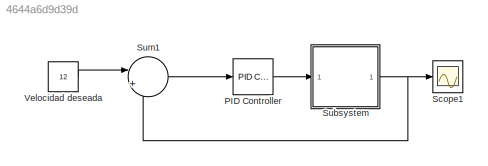
MODEL slx_4644a6d9d39d
KIND model
CONFIG AbsTol = auto
CONFIG EnableMultiTasking = off
CONFIG FixedStep = auto
CONFIG MaxStep = auto
CONFIG MinStep = auto
CONFIG PreLoadFcn = load("properties.mat");
CONFIG RelTol = 1e-3
CONFIG SampleTimeConstraint = Unconstrained
CONFIG SolverName = VariableStepAuto
CONFIG StartTime = 0.0
CONFIG StopTime = 10.0
BLOCK [Reference] PID Controller  REF=slpidlib/PID Controller
  LibrarySourceBlock = simulink/Continuous/PID Controller
  SourceBlock = slpidlib/PID Controller
  SourceType = PID 1dof
BLOCK [Scope] Scope1
  Floating = off
  NumInputPorts = 1
  ScopeSpecificationString = Simulink.scopes.TimeScopeBlockCfg('CurrentConfiguration', extmgr.ConfigurationSet(extmgr.Configuration('Core','General UI',true,'FigureColor',[0.129411764705882 0.129411764705882 0.129411764705882]),extmgr.Configuration('Core','Source UI',true),extmgr.Configuration('Sources','WiredSimulink',true,'DataLoggingVariableName','ScopeData1'),extmgr.Configuration('Visuals','Time Domain',true,'SerializedDi...<+1806ch>
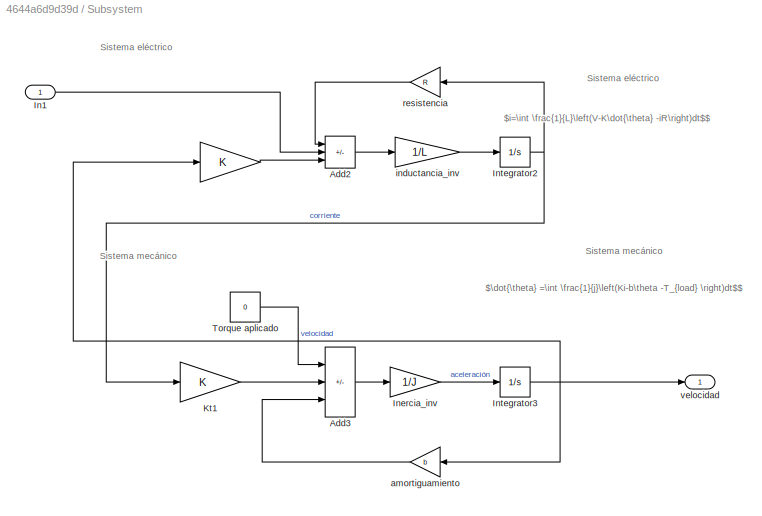
BLOCK [SubSystem] Subsystem
BLOCK [Gain] Subsystem/ 
  Gain = K
BLOCK [Sum] Subsystem/Add2
  IconShape = rectangular
  Inputs = -+-
BLOCK [Sum] Subsystem/Add3
  IconShape = rectangular
  Inputs = ++-
BLOCK [Inport] Subsystem/In1
BLOCK [Gain] Subsystem/Inercia_inv
  Gain = 1/J
BLOCK [Integrator] Subsystem/Integrator2
BLOCK [Integrator] Subsystem/Integrator3
BLOCK [Gain] Subsystem/Kt1
  Gain = K
BLOCK [Constant] Subsystem/Torque aplicado
  Value = 0
BLOCK [Gain] Subsystem/amortiguamiento
  Gain = b
BLOCK [Gain] Subsystem/inductancia_inv
  Gain = 1/L
BLOCK [Gain] Subsystem/resistencia
  Gain = R
BLOCK [Outport] Subsystem/velocidad
BLOCK [Sum] Sum1
  Inputs = |+-
BLOCK [Constant] Velocidad deseada
  Value = 12
ANNOTATION Subsystem: Sistema eléctrico
ANNOTATION Subsystem: Sistema mecánico
ANNOTATION Subsystem: $\dot{\theta} =\int \frac{1}{j}\left(Ki-b\theta -T_{load} \right)dt$$
ANNOTATION Subsystem: $i=\int \frac{1}{L}\left(V-K\dot{\theta} -iR\right)dt$$
LINE PID Controller:1 -> Subsystem:1
LINE Subsystem/ :1 -> Subsystem/Add2:3
LINE Subsystem/Add2:1 -> Subsystem/inductancia_inv:1
LINE Subsystem/Add3:1 -> Subsystem/Inercia_inv:1
LINE Subsystem/In1:1 -> Subsystem/Add2:2
LINE Subsystem/Inercia_inv:1 -> Subsystem/Integrator3:1
NET Subsystem/Integrator2:1 -> Subsystem/Kt1:1, Subsystem/resistencia:1
NET Subsystem/Integrator3:1 -> Subsystem/ :1, Subsystem/amortiguamiento:1, Subsystem/velocidad:1
LINE Subsystem/Kt1:1 -> Subsystem/Add3:2
LINE Subsystem/Torque aplicado:1 -> Subsystem/Add3:1
LINE Subsystem/amortiguamiento:1 -> Subsystem/Add3:3
LINE Subsystem/inductancia_inv:1 -> Subsystem/Integrator2:1
LINE Subsystem/resistencia:1 -> Subsystem/Add2:1
NET Subsystem:1 -> Scope1:1, Sum1:2
LINE Sum1:1 -> PID Controller:1
LINE Velocidad deseada:1 -> Sum1:1
note: NET lines group one-source signal fan-out (src -> all destinations, sorted); 1:1 wires keep LINE
